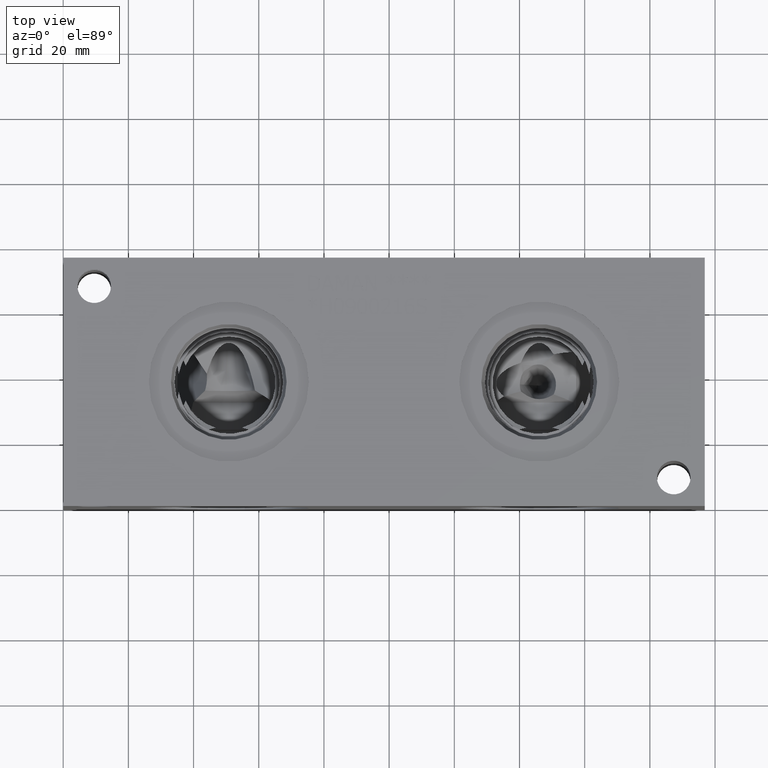
[diagram: clean part render]
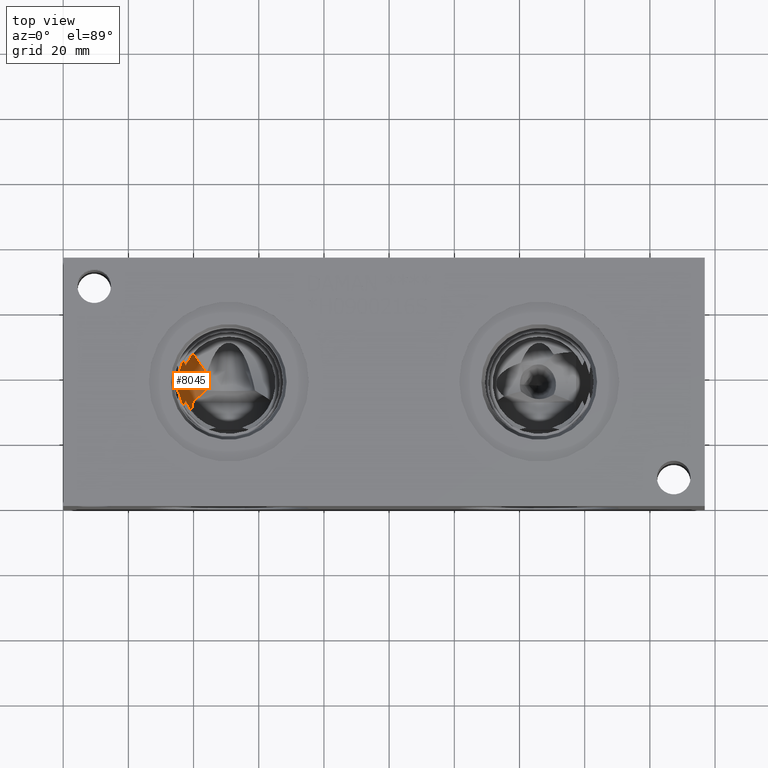
[diagram: same view with one face highlighted and labeled with its STEP entity id]
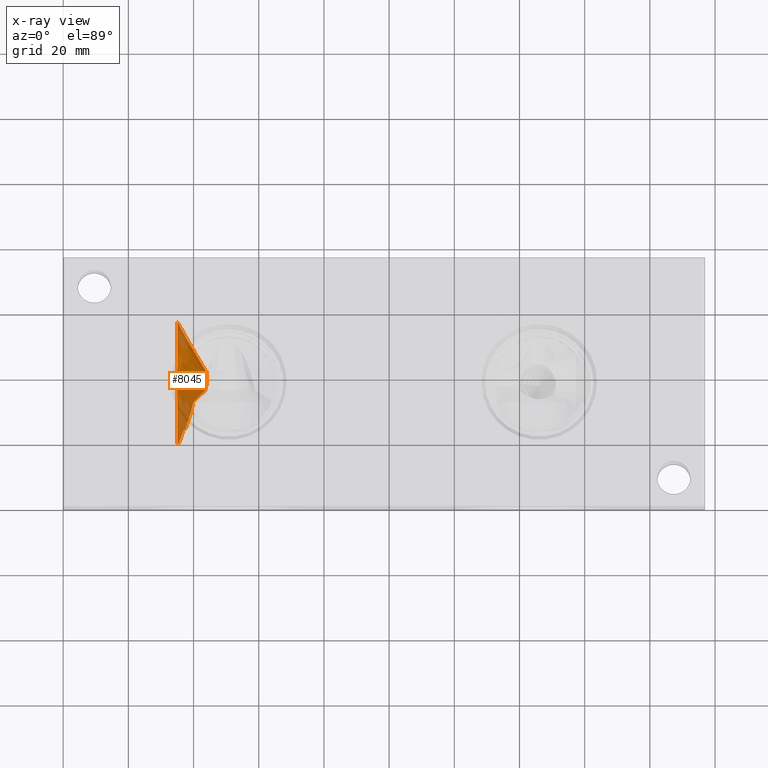
[diagram: x-ray of the same camera — body ghosted, the highlighted face saturated]
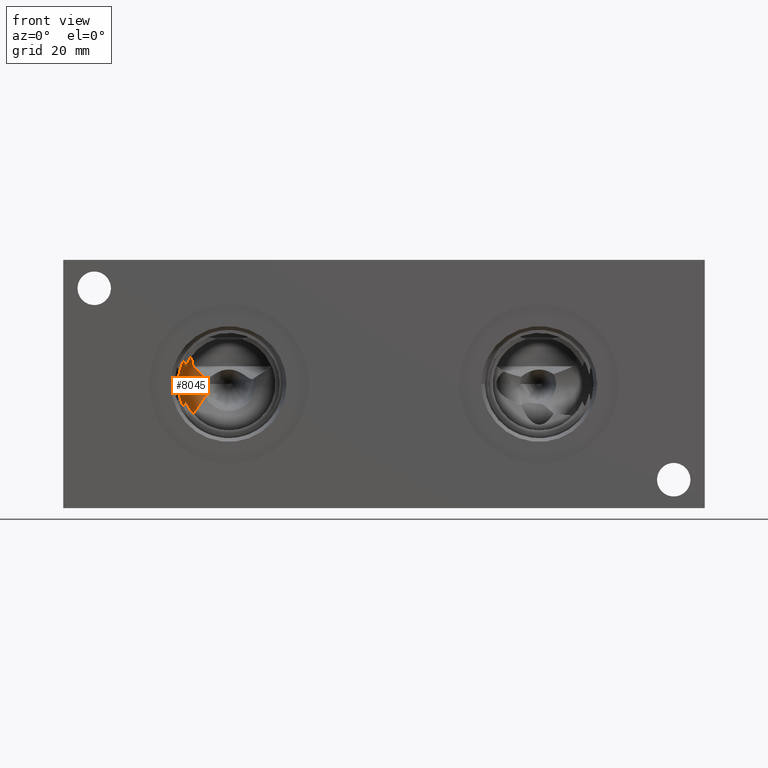
[diagram: same view with one face highlighted and labeled with its STEP entity id]
A machine part, top view. The second image highlights one B-rep face of the part: STEP entity #8045.
The next image is the same camera in x-ray: the body ghosted, the highlighted face saturated — about 28% of this face is hidden behind the body in this view.
A second angle (front view) of the same face is appended — the face is thin or edge-on in the first view.
In plain terms, the highlighted conical surface has half-angle 60 deg.
Its self-contained STEP definition (entity closure, byte-faithful):
#14=(
BOUNDED_CURVE()
B_SPLINE_CURVE(2,(#13659,#13660,#13661),.UNSPECIFIED.,.F.,.F.)
B_SPLINE_CURVE_WITH_KNOTS((3,3),(0.813695611087089,1.08787145368068),
 .UNSPECIFIED.)
CURVE()
GEOMETRIC_REPRESENTATION_ITEM()
RATIONAL_B_SPLINE_CURVE((1.01625544256163,1.01086636801821,1.))
REPRESENTATION_ITEM('')
);
#15=(
BOUNDED_CURVE()
B_SPLINE_CURVE(2,(#13665,#13666,#13667),.UNSPECIFIED.,.F.,.F.)
B_SPLINE_CURVE_WITH_KNOTS((3,3),(0.,0.274175842593597),.UNSPECIFIED.)
CURVE()
GEOMETRIC_REPRESENTATION_ITEM()
RATIONAL_B_SPLINE_CURVE((1.,1.0108663680182,1.01625544256162))
REPRESENTATION_ITEM('')
);
#25=CONICAL_SURFACE('',#8385,9.525,1.0471975511966);
#137=CIRCLE('',#8386,19.05);
#515=B_SPLINE_CURVE_WITH_KNOTS('',3,(#13415,#13416,#13417,#13418,#13419,
#13420,#13421,#13422),.UNSPECIFIED.,.F.,.F.,(4,2,2,4),(4.57309844978763,
4.99674476174969,5.29090172872903,5.46700916240658),.UNSPECIFIED.);
#519=B_SPLINE_CURVE_WITH_KNOTS('',3,(#13444,#13445,#13446,#13447,#13448,
#13449),.UNSPECIFIED.,.F.,.F.,(4,2,4),(2.53705101656734,2.82164833462973,
3.24732612677399),.UNSPECIFIED.);
#531=B_SPLINE_CURVE_WITH_KNOTS('',3,(#13574,#13575,#13576,#13577,#13578,
#13579,#13580,#13581),.UNSPECIFIED.,.F.,.F.,(4,2,2,4),(4.14364910162505,
4.2219166382448,4.68373591550827,4.94494046327852),.UNSPECIFIED.);
#533=B_SPLINE_CURVE_WITH_KNOTS('',3,(#13613,#13614,#13615,#13616,#13617,
#13618,#13619,#13620),.UNSPECIFIED.,.F.,.F.,(4,2,2,4),(6.68692463970188,
6.86290554417378,7.15706251115312,7.58080187394425),.UNSPECIFIED.);
#534=B_SPLINE_CURVE_WITH_KNOTS('',3,(#13623,#13624,#13625,#13626,#13627,
#13628,#13629,#13630,#13631,#13632,#13633,#13634,#13635,#13636,#13637),
 .UNSPECIFIED.,.F.,.F.,(4,2,2,2,2,3,4),(2.69169341732939,2.77001743480564,
2.84834145228188,3.00498948723437,3.16781125337744,3.3306330195205,3.41596289164322),
 .UNSPECIFIED.);
#535=B_SPLINE_CURVE_WITH_KNOTS('',3,(#13638,#13639,#13640,#13641,#13642,
#13643),.UNSPECIFIED.,.F.,.F.,(4,2,4),(2.53695917361993,2.61336939985315,
2.69169341732939),.UNSPECIFIED.);
#536=B_SPLINE_CURVE_WITH_KNOTS('',3,(#13645,#13646,#13647,#13648),
 .UNSPECIFIED.,.F.,.F.,(4,4),(3.97925639336481,4.18695844446884),
 .UNSPECIFIED.);
#537=B_SPLINE_CURVE_WITH_KNOTS('',3,(#13650,#13651,#13652,#13653,#13654,
#13655,#13656,#13657),.UNSPECIFIED.,.F.,.F.,(4,2,2,4),(7.17654359760384,
7.19077463754214,7.47025054181725,7.76391250874292),.UNSPECIFIED.);
#538=B_SPLINE_CURVE_WITH_KNOTS('',3,(#13669,#13670,#13671,#13672,#13673,
#13674,#13675,#13676),.UNSPECIFIED.,.F.,.F.,(4,2,2,4),(6.05879726391178,
6.35234692471681,6.63182282899192,6.64605386893022),.UNSPECIFIED.);
#539=B_SPLINE_CURVE_WITH_KNOTS('',3,(#13677,#13678,#13679,#13680),
 .UNSPECIFIED.,.F.,.F.,(4,4),(2.56555103795832,2.77327053325735),
 .UNSPECIFIED.);
#1010=FACE_OUTER_BOUND('',#1455,.T.);
#1455=EDGE_LOOP('',(#6672,#6673,#6674,#6675,#6676,#6677,#6678,#6679,#6680,
#6681,#6682,#6683,#6684));
#3580=VERTEX_POINT('',#13412);
#3581=VERTEX_POINT('',#13414);
#3585=VERTEX_POINT('',#13442);
#3603=VERTEX_POINT('',#13571);
#3604=VERTEX_POINT('',#13573);
#3605=VERTEX_POINT('',#13611);
#3606=VERTEX_POINT('',#13622);
#3607=VERTEX_POINT('',#13644);
#3608=VERTEX_POINT('',#13649);
#3609=VERTEX_POINT('',#13658);
#3610=VERTEX_POINT('',#13662);
#3611=VERTEX_POINT('',#13664);
#3612=VERTEX_POINT('',#13668);
#4630=EDGE_CURVE('',#3580,#3581,#515,.T.);
#4636=EDGE_CURVE('',#3580,#3585,#519,.T.);
#4657=EDGE_CURVE('',#3604,#3603,#531,.T.);
#4660=EDGE_CURVE('',#3605,#3603,#533,.T.);
#4661=EDGE_CURVE('',#3606,#3585,#534,.T.);
#4662=EDGE_CURVE('',#3604,#3606,#535,.T.);
#4663=EDGE_CURVE('',#3605,#3607,#536,.T.);
#4664=EDGE_CURVE('',#3608,#3607,#537,.T.);
#4665=EDGE_CURVE('',#3608,#3609,#14,.T.);
#4666=EDGE_CURVE('',#3609,#3610,#137,.T.);
#4667=EDGE_CURVE('',#3610,#3611,#15,.T.);
#4668=EDGE_CURVE('',#3612,#3611,#538,.T.);
#4669=EDGE_CURVE('',#3612,#3581,#539,.T.);
#6672=ORIENTED_EDGE('',*,*,#4636,.T.);
#6673=ORIENTED_EDGE('',*,*,#4661,.F.);
#6674=ORIENTED_EDGE('',*,*,#4662,.F.);
#6675=ORIENTED_EDGE('',*,*,#4657,.T.);
#6676=ORIENTED_EDGE('',*,*,#4660,.F.);
#6677=ORIENTED_EDGE('',*,*,#4663,.T.);
#6678=ORIENTED_EDGE('',*,*,#4664,.F.);
#6679=ORIENTED_EDGE('',*,*,#4665,.T.);
#6680=ORIENTED_EDGE('',*,*,#4666,.T.);
#6681=ORIENTED_EDGE('',*,*,#4667,.T.);
#6682=ORIENTED_EDGE('',*,*,#4668,.F.);
#6683=ORIENTED_EDGE('',*,*,#4669,.T.);
#6684=ORIENTED_EDGE('',*,*,#4630,.F.);
#8045=ADVANCED_FACE('',(#1010),#25,.F.);
#8385=AXIS2_PLACEMENT_3D('',#13621,#9713,#9714);
#8386=AXIS2_PLACEMENT_3D('',#13663,#9715,#9716);
#9713=DIRECTION('center_axis',(-1.,0.,0.));
#9714=DIRECTION('ref_axis',(0.,1.,0.));
#9715=DIRECTION('center_axis',(-1.,0.,0.));
#9716=DIRECTION('ref_axis',(0.,1.,0.));
#13412=CARTESIAN_POINT('',(39.8702325786815,32.64709,28.8982153705988));
#13414=CARTESIAN_POINT('',(37.5528176861846,24.3981968476482,32.7479146804486));
#13415=CARTESIAN_POINT('Ctrl Pts',(39.8702325786815,32.64709,28.8982153705988));
#13416=CARTESIAN_POINT('Ctrl Pts',(39.5977235117453,31.1750271173688,29.2218983127421));
#13417=CARTESIAN_POINT('Ctrl Pts',(39.2386211214586,29.7578794011713,29.680220737129));
#13418=CARTESIAN_POINT('Ctrl Pts',(38.6293946348031,27.6357686061594,30.6023893455229));
#13419=CARTESIAN_POINT('Ctrl Pts',(38.3403725699892,26.7143458988407,31.0791403257872));
#13420=CARTESIAN_POINT('Ctrl Pts',(37.8823395385136,25.3407380247568,31.9835598408382));
#13421=CARTESIAN_POINT('Ctrl Pts',(37.7120226611977,24.8481607891196,32.3538594527878));
#13422=CARTESIAN_POINT('Ctrl Pts',(37.5528176894079,24.3981968618741,32.7479146979952));
#13442=CARTESIAN_POINT('',(43.500016745311,36.1083665232751,34.1662957030193));
#13444=CARTESIAN_POINT('Ctrl Pts',(39.8702325786815,32.64709,28.8982153705988));
#13445=CARTESIAN_POINT('Ctrl Pts',(40.3661549938973,33.1308015813195,29.6100269750663));
#13446=CARTESIAN_POINT('Ctrl Pts',(40.8585956779449,33.6088502595515,30.3186431731999));
#13447=CARTESIAN_POINT('Ctrl Pts',(42.0769285656778,34.7812000118658,32.0795655703296));
#13448=CARTESIAN_POINT('Ctrl Pts',(42.7941712869929,35.4637042936043,33.1223624998332));
#13449=CARTESIAN_POINT('Ctrl Pts',(43.5000167454445,36.1083665236813,34.1662957026782));
#13571=CARTESIAN_POINT('',(39.8704121318172,47.3019978962001,43.55194));
#13573=CARTESIAN_POINT('',(44.0435938785353,41.225897817543,39.6011197223171));
#13574=CARTESIAN_POINT('Ctrl Pts',(44.0435938785353,41.225897817543,39.6011197223171));
#13575=CARTESIAN_POINT('Ctrl Pts',(43.9116146132854,41.4232943401546,39.7181293165801));
#13576=CARTESIAN_POINT('Ctrl Pts',(43.7792209828801,41.6203766511328,39.8370467243234));
#13577=CARTESIAN_POINT('Ctrl Pts',(42.8626061284676,42.9796962177067,40.6685313122));
#13578=CARTESIAN_POINT('Ctrl Pts',(42.0647191372707,44.1391569286141,41.4288953175383));
#13579=CARTESIAN_POINT('Ctrl Pts',(40.7964396742341,45.9712493301944,42.650706931984));
#13580=CARTESIAN_POINT('Ctrl Pts',(40.3347702910674,46.6354883316295,43.0990119803278));
#13581=CARTESIAN_POINT('Ctrl Pts',(39.8704121318172,47.3019978962001,43.55194));
#13611=CARTESIAN_POINT('',(37.5531608827908,43.4529347022256,51.800833152361));
#13613=CARTESIAN_POINT('Ctrl Pts',(37.5531608860167,43.4529346846606,51.8008331381231));
#13614=CARTESIAN_POINT('Ctrl Pts',(37.71226731988,43.8466733449559,51.3511318153532));
#13615=CARTESIAN_POINT('Ctrl Pts',(37.8824627767506,44.2166835020188,50.8588923927));
#13616=CARTESIAN_POINT('Ctrl Pts',(38.3403725699892,45.1208596742128,49.4856541011593));
#13617=CARTESIAN_POINT('Ctrl Pts',(38.6293946348031,45.5976106544771,48.5642313938406));
#13618=CARTESIAN_POINT('Ctrl Pts',(39.238700097177,46.5198988061443,46.441845503723));
#13619=CARTESIAN_POINT('Ctrl Pts',(39.5978806890203,46.9783011963648,45.0243497809452));
#13620=CARTESIAN_POINT('Ctrl Pts',(39.8704121318172,47.3019978962001,43.55194));
#13621=CARTESIAN_POINT('Origin',(40.5463813140312,38.1,38.1));
#13622=CARTESIAN_POINT('',(43.9936134403935,41.6542188116568,38.1));
#13623=CARTESIAN_POINT('Ctrl Pts',(43.9936134403935,41.6542188116568,38.1));
#13624=CARTESIAN_POINT('Ctrl Pts',(43.9936134403935,41.6542188116568,37.8389199417459));
#13625=CARTESIAN_POINT('Ctrl Pts',(43.9988478858945,41.616216199606,37.5754234148666));
#13626=CARTESIAN_POINT('Ctrl Pts',(44.0174588476201,41.4670262490086,37.0633836845626));
#13627=CARTESIAN_POINT('Ctrl Pts',(44.0307527262011,41.3559241869025,36.8148126383083));
#13628=CARTESIAN_POINT('Ctrl Pts',(44.0723206094967,40.9351566103651,36.1156856788731));
#13629=CARTESIAN_POINT('Ctrl Pts',(44.1003766479163,40.5338301967134,35.7122660789966));
#13630=CARTESIAN_POINT('Ctrl Pts',(44.1057418768477,39.6749358008138,35.082756564436));
#13631=CARTESIAN_POINT('Ctrl Pts',(44.081651623837,39.1499150095372,34.8142926127516));
#13632=CARTESIAN_POINT('Ctrl Pts',(43.9500363656054,38.0513656873624,34.4259353457936));
#13633=CARTESIAN_POINT('Ctrl Pts',(43.8426949530664,37.4783817356286,34.3044412172895));
#13634=CARTESIAN_POINT('Ctrl Pts',(43.71938082356,36.95413590563,34.2371671759585));
#13635=CARTESIAN_POINT('Ctrl Pts',(43.6547556868172,36.679394814839,34.2019109231863));
#13636=CARTESIAN_POINT('Ctrl Pts',(43.5811869410748,36.3961099098703,34.1781947902574));
#13637=CARTESIAN_POINT('Ctrl Pts',(43.5000167454755,36.1083665229513,34.166295703108));
#13638=CARTESIAN_POINT('Ctrl Pts',(44.0435938785353,41.2258978175429,39.601119722317));
#13639=CARTESIAN_POINT('Ctrl Pts',(44.0301004319277,41.3613497066791,39.3730465407978));
#13640=CARTESIAN_POINT('Ctrl Pts',(44.0172314748632,41.4688489237781,39.1303606534865));
#13641=CARTESIAN_POINT('Ctrl Pts',(43.9988478858945,41.616216199606,38.6245765851334));
#13642=CARTESIAN_POINT('Ctrl Pts',(43.9936134403935,41.6542188116568,38.3610800582542));
#13643=CARTESIAN_POINT('Ctrl Pts',(43.9936134403935,41.6542188116568,38.1));
#13644=CARTESIAN_POINT('',(36.8424640726701,45.1427101691959,52.4002));
#13645=CARTESIAN_POINT('Ctrl Pts',(37.5531608739162,43.4529347058118,51.800833152361));
#13646=CARTESIAN_POINT('Ctrl Pts',(37.3340830127108,44.0214480838845,51.9861013909156));
#13647=CARTESIAN_POINT('Ctrl Pts',(37.0955253576488,44.5828759371144,52.1873250518173));
#13648=CARTESIAN_POINT('Ctrl Pts',(36.8424640726701,45.1427101691959,52.4002));
#13649=CARTESIAN_POINT('',(35.3917005805994,40.7451625076919,56.3626));
#13650=CARTESIAN_POINT('Ctrl Pts',(35.3917005805994,40.7451625076919,56.3626));
#13651=CARTESIAN_POINT('Ctrl Pts',(35.3994787026712,40.7904707386434,56.3424248541185));
#13652=CARTESIAN_POINT('Ctrl Pts',(35.4074296916766,40.8355874214755,56.3217877656796));
#13653=CARTESIAN_POINT('Ctrl Pts',(35.5749617987674,41.7625374285417,55.8866377592605));
#13654=CARTESIAN_POINT('Ctrl Pts',(35.8007095706259,42.5631946909399,55.2934561268085));
#13655=CARTESIAN_POINT('Ctrl Pts',(36.2692225637863,43.9142878527993,54.0266101952216));
#13656=CARTESIAN_POINT('Ctrl Pts',(36.5515968389622,44.5662573879472,53.2456776246306));
#13657=CARTESIAN_POINT('Ctrl Pts',(36.8424640726701,45.1427101691959,52.4002));
#13658=CARTESIAN_POINT('',(35.04712,43.5203266728123,56.3626));
#13659=CARTESIAN_POINT('Ctrl Pts',(35.3917005805994,40.7451625076919,56.3626));
#13660=CARTESIAN_POINT('Ctrl Pts',(35.2786917336118,42.1106624002211,56.3626));
#13661=CARTESIAN_POINT('Ctrl Pts',(35.04712,43.5203266728122,56.3626));
#13662=CARTESIAN_POINT('',(35.04712,19.8374,32.6796733271877));
#13663=CARTESIAN_POINT('Origin',(35.04712,38.1,38.1));
#13664=CARTESIAN_POINT('',(35.3917005805994,19.8374,35.4548374923081));
#13665=CARTESIAN_POINT('Ctrl Pts',(35.04712,19.8374,32.6796733271878));
#13666=CARTESIAN_POINT('Ctrl Pts',(35.2786917336117,19.8374,34.0893375997794));
#13667=CARTESIAN_POINT('Ctrl Pts',(35.3917005805994,19.8374,35.4548374923081));
#13668=CARTESIAN_POINT('',(36.8421303604024,23.79883,31.0579512346193));
#13669=CARTESIAN_POINT('Ctrl Pts',(36.8421303604024,23.79883,31.0579512346193));
#13670=CARTESIAN_POINT('Ctrl Pts',(36.5513805075519,22.9537237564961,31.6342392835988));
#13671=CARTESIAN_POINT('Ctrl Pts',(36.2691307588657,22.1731415668602,32.2859768933277));
#13672=CARTESIAN_POINT('Ctrl Pts',(35.8007095706259,20.9065438731915,33.6368053090601));
#13673=CARTESIAN_POINT('Ctrl Pts',(35.5749617987674,20.3133622407395,34.4374625714583));
#13674=CARTESIAN_POINT('Ctrl Pts',(35.4074296916766,19.8782122343204,35.3644125785245));
#13675=CARTESIAN_POINT('Ctrl Pts',(35.3994787026712,19.8575751458815,35.4095292613566));
#13676=CARTESIAN_POINT('Ctrl Pts',(35.3917005805994,19.8374,35.4548374923081));
#13677=CARTESIAN_POINT('Ctrl Pts',(36.8421303604024,23.79883,31.0579512346193));
#13678=CARTESIAN_POINT('Ctrl Pts',(37.0951940844709,24.0117096572555,31.617844701748));
#13679=CARTESIAN_POINT('Ctrl Pts',(37.3337495316848,24.2129341822209,32.1793344912796));
#13680=CARTESIAN_POINT('Ctrl Pts',(37.5528176773192,24.3981968476482,32.7479146768669));